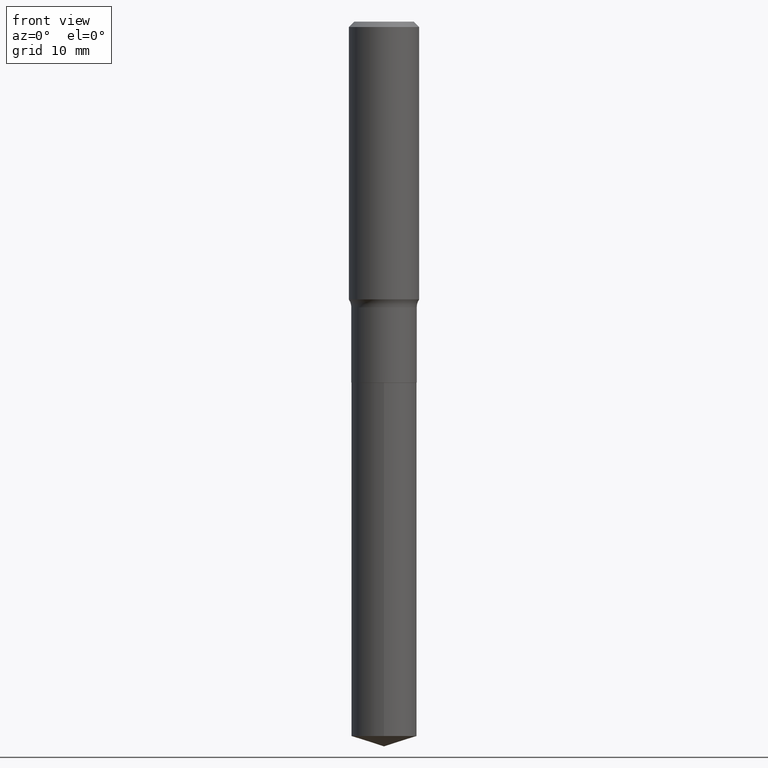
[diagram: clean part render]
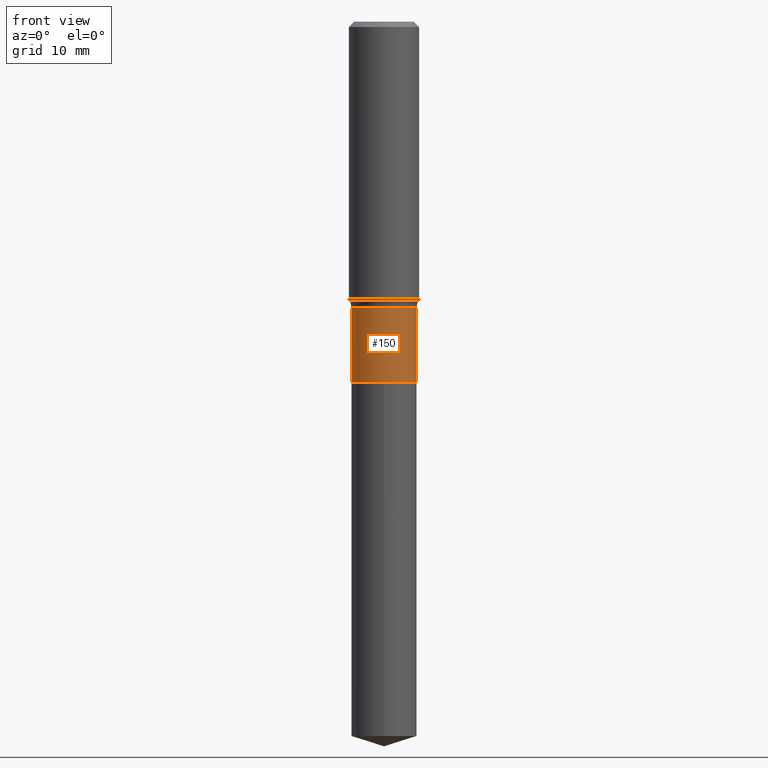
[diagram: same view with one face highlighted and labeled with its STEP entity id]
A machine part, front view. The second image highlights one B-rep face of the part: STEP entity #150.
In plain terms, the highlighted cylindrical surface (edge-blend (fillet) strip) has radius 4.6495 mm, axis along (-0, 0, 1).
Its self-contained STEP definition (entity closure, byte-faithful):
#1 = CARTESIAN_POINT ( 'NONE',  ( 0.000000000000000000, 0.000000000000000000, 0.000000000000000000 ) ) ;
#4 = CYLINDRICAL_SURFACE ( 'NONE', #317, 0.1830499999999999072 ) ;
#17 = DIRECTION ( 'NONE',  ( -2.445468806185136597E-29, 3.491481338843145583E-15, 1.000000000000000000 ) ) ;
#20 = CARTESIAN_POINT ( 'NONE',  ( 0.1830499999999999072, -1.278231318150470470E-15, 8.925841588094455250E-30 ) ) ;
#21 = VERTEX_POINT ( 'NONE', #323 ) ;
#23 = DIRECTION ( 'NONE',  ( 1.000000000000000000, -6.982962677686267499E-15, 0.000000000000000000 ) ) ;
#82 = CARTESIAN_POINT ( 'NONE',  ( -0.1830499999999999072, 1.300648477808862731E-15, -9.004110682711601185E-30 ) ) ;
#95 = DIRECTION ( 'NONE',  ( 1.000000000000000000, -6.982962677686269077E-15, 0.000000000000000000 ) ) ;
#119 = DIRECTION ( 'NONE',  ( 1.000000000000000000, -6.982962677686266711E-15, 4.876176775795935232E-29 ) ) ;
#124 = VECTOR ( 'NONE', #377, 39.37007874015748143 ) ;
#133 = LINE ( 'NONE', #20, #368 ) ;
#144 = CIRCLE ( 'NONE', #259, 0.1830499999999999350 ) ;
#150 = ADVANCED_FACE ( 'NONE', ( #335 ), #4, .T. ) ;
#151 = VERTEX_POINT ( 'NONE', #152 ) ;
#152 = CARTESIAN_POINT ( 'NONE',  ( 0.1830499999999999350, -8.327881289408665635E-15, -2.019099999999999895 ) ) ;
#155 = AXIS2_PLACEMENT_3D ( 'NONE', #460, #17, #95 ) ;
#170 = DIRECTION ( 'NONE',  ( -2.445468806185136597E-29, 3.491481338843145583E-15, 1.000000000000000000 ) ) ;
#175 = ORIENTED_EDGE ( 'NONE', *, *, #421, .F. ) ;
#206 = VERTEX_POINT ( 'NONE', #304 ) ;
#219 = EDGE_LOOP ( 'NONE', ( #394, #400, #372, #175 ) ) ;
#258 = EDGE_CURVE ( 'NONE', #21, #303, #415, .T. ) ;
#259 = AXIS2_PLACEMENT_3D ( 'NONE', #425, #170, #23 ) ;
#278 = CARTESIAN_POINT ( 'NONE',  ( -0.1830499999999999072, -5.014917541957560996E-15, -1.598600000000000021 ) ) ;
#290 = EDGE_CURVE ( 'NONE', #21, #151, #144, .T. ) ;
#303 = VERTEX_POINT ( 'NONE', #278 ) ;
#304 = CARTESIAN_POINT ( 'NONE',  ( 0.1830499999999999072, -6.859713386425123547E-15, -1.598600000000000021 ) ) ;
#317 = AXIS2_PLACEMENT_3D ( 'NONE', #1, #457, #119 ) ;
#323 = CARTESIAN_POINT ( 'NONE',  ( -0.1830499999999999350, -5.014917541957560996E-15, -2.019099999999999895 ) ) ;
#334 = EDGE_CURVE ( 'NONE', #151, #206, #133, .T. ) ;
#335 = FACE_OUTER_BOUND ( 'NONE', #219, .T. ) ;
#339 = CIRCLE ( 'NONE', #155, 0.1830499999999999072 ) ;
#368 = VECTOR ( 'NONE', #434, 39.37007874015748143 ) ;
#372 = ORIENTED_EDGE ( 'NONE', *, *, #334, .T. ) ;
#377 = DIRECTION ( 'NONE',  ( -2.445468806185136877E-29, 3.491481338843145188E-15, 1.000000000000000000 ) ) ;
#394 = ORIENTED_EDGE ( 'NONE', *, *, #258, .F. ) ;
#400 = ORIENTED_EDGE ( 'NONE', *, *, #290, .T. ) ;
#415 = LINE ( 'NONE', #82, #124 ) ;
#421 = EDGE_CURVE ( 'NONE', #303, #206, #339, .T. ) ;
#425 = CARTESIAN_POINT ( 'NONE',  ( 4.937646066568409466E-29, -7.049649971258195757E-15, -2.019099999999999895 ) ) ;
#434 = DIRECTION ( 'NONE',  ( -2.445468806185136877E-29, 3.491481338843145188E-15, 1.000000000000000000 ) ) ;
#457 = DIRECTION ( 'NONE',  ( -2.445468806185136597E-29, 3.491481338843145583E-15, 1.000000000000000000 ) ) ;
#460 = CARTESIAN_POINT ( 'NONE',  ( 3.909326433567559047E-29, -5.581482068274652880E-15, -1.598600000000000021 ) ) ;